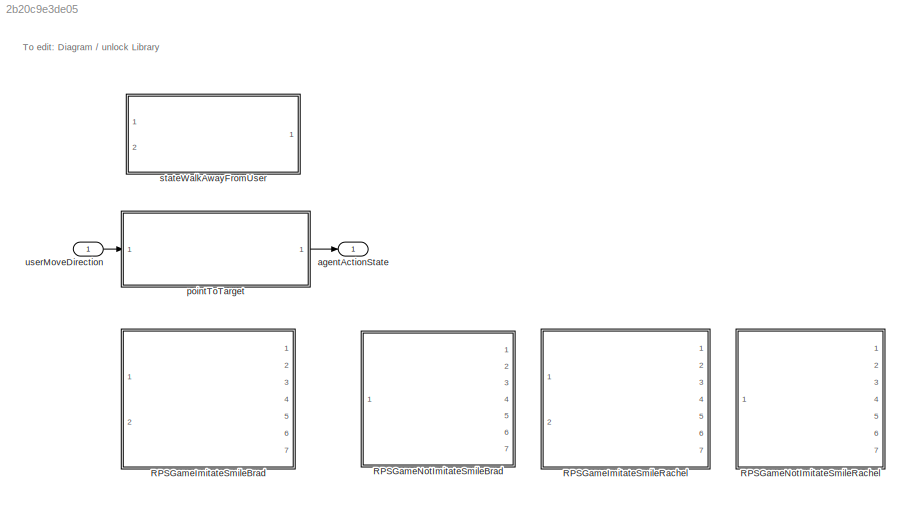
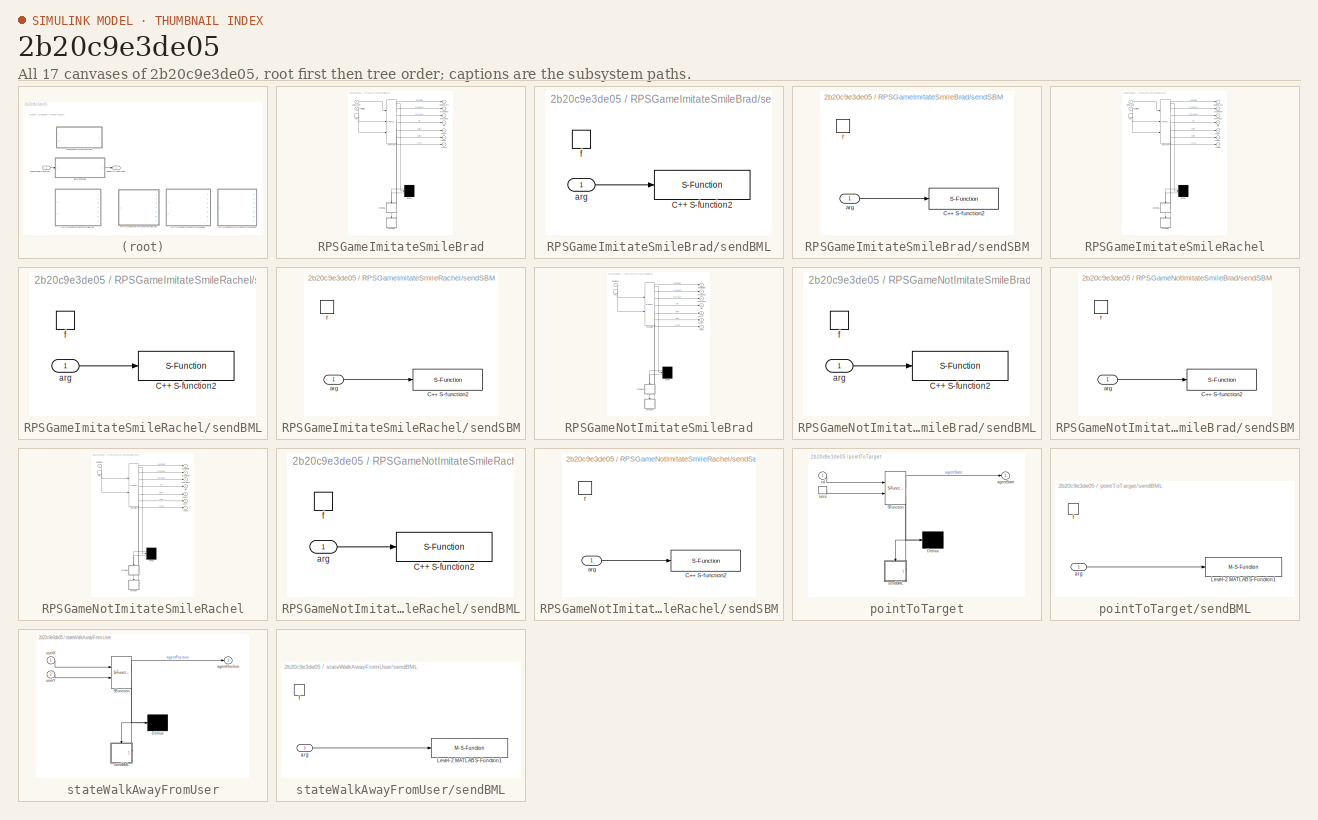
[diagram: thumbnail index - all 17 canvases of the model, root first then tree order]
MODEL slx_2b20c9e3de05
KIND library
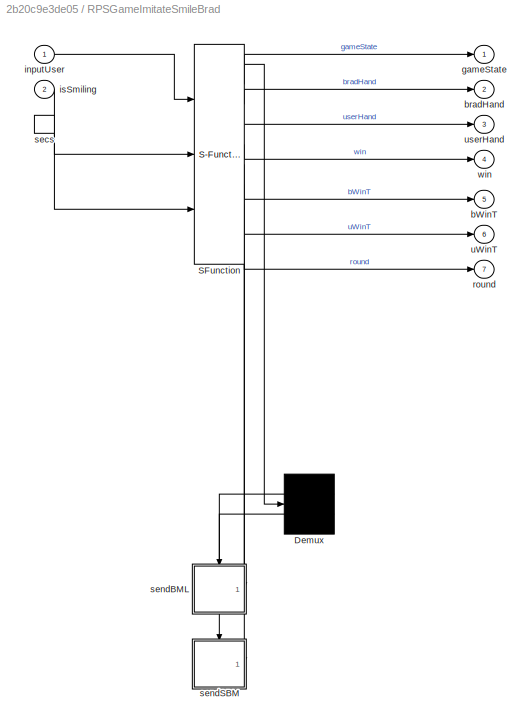
BLOCK [SubSystem] RPSGameImitateSmileBrad
  ErrorFcn = Stateflow.Translate.translate
  PermitHierarchicalResolution = ExplicitOnly
  Ports = [2, 7, 0, 1]
  RequestExecContextInheritance = off
  SFBlockType = Chart
  TreatAsAtomicUnit = on
BLOCK [Demux] RPSGameImitateSmileBrad/ Demux 
  Outputs = 2
  Ports = [1, 2]
BLOCK [S-Function] RPSGameImitateSmileBrad/ SFunction 
  EnableBusSupport = off
  FunctionName = sf_sfun
  PortCounts = [3 10]
  Ports = [3, 10]
  Tag = Stateflow S-Function lib_affectiveChar_scenario 2
BLOCK [Outport] RPSGameImitateSmileBrad/bWinT
  IconDisplay = Port number
  Port = 5
BLOCK [Outport] RPSGameImitateSmileBrad/bradHand
  IconDisplay = Port number
  Port = 2
BLOCK [Outport] RPSGameImitateSmileBrad/gameState
  IconDisplay = Port number
BLOCK [Inport] RPSGameImitateSmileBrad/inputUser
  IconDisplay = Port number
BLOCK [Inport] RPSGameImitateSmileBrad/isSmiling
  IconDisplay = Port number
  Port = 2
BLOCK [Outport] RPSGameImitateSmileBrad/round
  IconDisplay = Port number
  Port = 7
BLOCK [TriggerPort] RPSGameImitateSmileBrad/secs
  Ports = [0, 1]
  ShowOutputPort = on
  StatesWhenEnabling = held
BLOCK [SubSystem] RPSGameImitateSmileBrad/sendBML
  Ports = [1, 0, 0, 1]
  PreDeleteFcn = Stateflow.SLINSF.SimulinkMan.removePreDeleteFcn
  RequestExecContextInheritance = off
  UndoDeleteFcn = Stateflow.SLINSF.SimulinkMan.restorePreDeleteFcn
BLOCK [S-Function] RPSGameImitateSmileBrad/sendBML/C++ S-function2
  EnableBusSupport = off
  FunctionName = yarpSendText_sfun
  Parameters = '/sim/out/bml0', '/SB/in/bml'
  Ports = [1]
BLOCK [Inport] RPSGameImitateSmileBrad/sendBML/arg
  IconDisplay = Port number
  OutDataTypeStr = double
  PortDimensions = [256 1]
  SignalType = real
  VarSizeSig = No
BLOCK [TriggerPort] RPSGameImitateSmileBrad/sendBML/f
  CopyFcn = Stateflow.SLINSF.SimulinkMan.removeBlockPreDeleteFcn
  Ports = []
  PreDeleteFcn = Stateflow.SLINSF.SimulinkMan.unsafePredeleteFcn
  StatesWhenEnabling = held
  TriggerType = function-call
BLOCK [SubSystem] RPSGameImitateSmileBrad/sendSBM
  Ports = [1, 0, 0, 1]
  PreDeleteFcn = Stateflow.SLINSF.SimulinkMan.removePreDeleteFcn
  RequestExecContextInheritance = off
  UndoDeleteFcn = Stateflow.SLINSF.SimulinkMan.restorePreDeleteFcn
BLOCK [S-Function] RPSGameImitateSmileBrad/sendSBM/C++ S-function2
  EnableBusSupport = off
  FunctionName = yarpSendText_sfun
  Parameters = '/sim/out/smb0', '/SB/in/sbm'
  Ports = [1]
BLOCK [Inport] RPSGameImitateSmileBrad/sendSBM/arg
  IconDisplay = Port number
  OutDataTypeStr = double
  PortDimensions = [256 1]
  SignalType = real
  VarSizeSig = No
BLOCK [TriggerPort] RPSGameImitateSmileBrad/sendSBM/f
  CopyFcn = Stateflow.SLINSF.SimulinkMan.removeBlockPreDeleteFcn
  Ports = []
  PreDeleteFcn = Stateflow.SLINSF.SimulinkMan.unsafePredeleteFcn
  StatesWhenEnabling = held
  TriggerType = function-call
BLOCK [Outport] RPSGameImitateSmileBrad/uWinT
  IconDisplay = Port number
  Port = 6
BLOCK [Outport] RPSGameImitateSmileBrad/userHand
  IconDisplay = Port number
  Port = 3
BLOCK [Outport] RPSGameImitateSmileBrad/win
  IconDisplay = Port number
  Port = 4
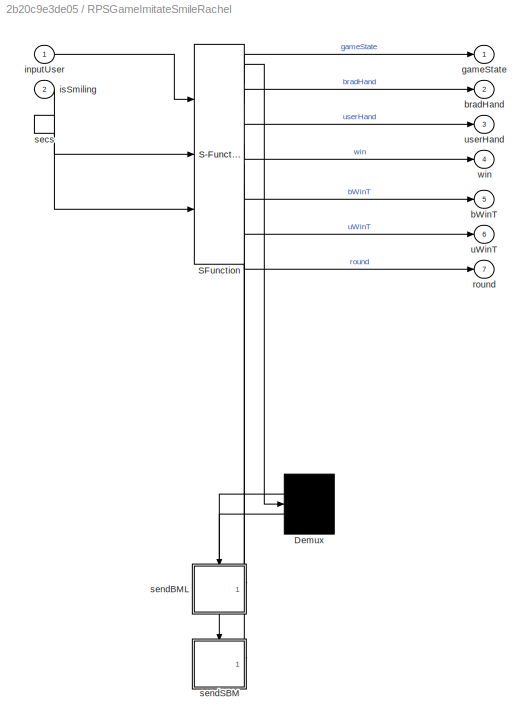
BLOCK [SubSystem] RPSGameImitateSmileRachel
  DSMNames = BOREDOM_THRESHOLD,GAZE_GUI,GAZE_SHOFTEYE,GAZE_USER_HAND,avert,bHand,boredom,diff,gazing,isPosing,p,r,randAvertGazeChance,randPoseChance,s,temp,uHand
  DSMValues = BOREDOM_THRESHOLD,GAZE_GUI,GAZE_SHOFTEYE,GAZE_USER_HAND,avert,bHand,boredom,diff,gazing,isPosing,p,r,randAvertGazeChance,randPoseChance,s,temp,uHand
  ErrorFcn = Stateflow.Translate.translate
  PermitHierarchicalResolution = ExplicitOnly
  Ports = [2, 7, 0, 1]
  RequestExecContextInheritance = off
  SFBlockType = Chart
  TreatAsAtomicUnit = on
BLOCK [Demux] RPSGameImitateSmileRachel/ Demux 
  Outputs = 2
  Ports = [1, 2]
BLOCK [S-Function] RPSGameImitateSmileRachel/ SFunction 
  EnableBusSupport = off
  FunctionName = sf_sfun
  PortCounts = [3 10]
  Ports = [3, 10]
  Tag = Stateflow S-Function lib_affectiveChar_scenario 5
BLOCK [Outport] RPSGameImitateSmileRachel/bWinT
  IconDisplay = Port number
  Port = 5
BLOCK [Outport] RPSGameImitateSmileRachel/bradHand
  IconDisplay = Port number
  Port = 2
BLOCK [Outport] RPSGameImitateSmileRachel/gameState
  IconDisplay = Port number
BLOCK [Inport] RPSGameImitateSmileRachel/inputUser
  IconDisplay = Port number
BLOCK [Inport] RPSGameImitateSmileRachel/isSmiling
  IconDisplay = Port number
  Port = 2
BLOCK [Outport] RPSGameImitateSmileRachel/round
  IconDisplay = Port number
  Port = 7
BLOCK [TriggerPort] RPSGameImitateSmileRachel/secs
  Ports = [0, 1]
  ShowOutputPort = on
  StatesWhenEnabling = held
BLOCK [SubSystem] RPSGameImitateSmileRachel/sendBML
  Ports = [1, 0, 0, 1]
  PreDeleteFcn = Stateflow.SLINSF.SimulinkMan.removePreDeleteFcn
  RequestExecContextInheritance = off
  UndoDeleteFcn = Stateflow.SLINSF.SimulinkMan.restorePreDeleteFcn
BLOCK [S-Function] RPSGameImitateSmileRachel/sendBML/C++ S-function2
  EnableBusSupport = off
  FunctionName = yarpSendText_sfun
  Parameters = '/sim/out/bml0', '/SB/in/bml'
  Ports = [1]
BLOCK [Inport] RPSGameImitateSmileRachel/sendBML/arg
  IconDisplay = Port number
  OutDataTypeStr = double
  PortDimensions = [256 1]
  SignalType = real
  VarSizeSig = No
BLOCK [TriggerPort] RPSGameImitateSmileRachel/sendBML/f
  CopyFcn = Stateflow.SLINSF.SimulinkMan.removeBlockPreDeleteFcn
  Ports = []
  PreDeleteFcn = Stateflow.SLINSF.SimulinkMan.unsafePredeleteFcn
  StatesWhenEnabling = held
  TriggerType = function-call
BLOCK [SubSystem] RPSGameImitateSmileRachel/sendSBM
  Ports = [1, 0, 0, 1]
  PreDeleteFcn = Stateflow.SLINSF.SimulinkMan.removePreDeleteFcn
  RequestExecContextInheritance = off
  UndoDeleteFcn = Stateflow.SLINSF.SimulinkMan.restorePreDeleteFcn
BLOCK [S-Function] RPSGameImitateSmileRachel/sendSBM/C++ S-function2
  EnableBusSupport = off
  FunctionName = yarpSendText_sfun
  Parameters = '/sim/out/smb0', '/SB/in/sbm'
  Ports = [1]
BLOCK [Inport] RPSGameImitateSmileRachel/sendSBM/arg
  IconDisplay = Port number
  OutDataTypeStr = double
  PortDimensions = [256 1]
  SignalType = real
  VarSizeSig = No
BLOCK [TriggerPort] RPSGameImitateSmileRachel/sendSBM/f
  CopyFcn = Stateflow.SLINSF.SimulinkMan.removeBlockPreDeleteFcn
  Ports = []
  PreDeleteFcn = Stateflow.SLINSF.SimulinkMan.unsafePredeleteFcn
  StatesWhenEnabling = held
  TriggerType = function-call
BLOCK [Outport] RPSGameImitateSmileRachel/uWinT
  IconDisplay = Port number
  Port = 6
BLOCK [Outport] RPSGameImitateSmileRachel/userHand
  IconDisplay = Port number
  Port = 3
BLOCK [Outport] RPSGameImitateSmileRachel/win
  IconDisplay = Port number
  Port = 4
BLOCK [SubSystem] RPSGameNotImitateSmileBrad
  ErrorFcn = Stateflow.Translate.translate
  PermitHierarchicalResolution = ExplicitOnly
  Ports = [1, 7, 0, 1]
  RequestExecContextInheritance = off
  SFBlockType = Chart
  TreatAsAtomicUnit = on
BLOCK [Demux] RPSGameNotImitateSmileBrad/ Demux 
  Outputs = 2
  Ports = [1, 2]
BLOCK [S-Function] RPSGameNotImitateSmileBrad/ SFunction 
  EnableBusSupport = off
  FunctionName = sf_sfun
  PortCounts = [2 10]
  Ports = [2, 10]
  Tag = Stateflow S-Function lib_affectiveChar_scenario 8
BLOCK [Outport] RPSGameNotImitateSmileBrad/bWinT
  IconDisplay = Port number
  Port = 5
BLOCK [Outport] RPSGameNotImitateSmileBrad/bradHand
  IconDisplay = Port number
  Port = 2
BLOCK [Outport] RPSGameNotImitateSmileBrad/gameState
  IconDisplay = Port number
BLOCK [Inport] RPSGameNotImitateSmileBrad/inputUser
  IconDisplay = Port number
BLOCK [Outport] RPSGameNotImitateSmileBrad/round
  IconDisplay = Port number
  Port = 7
BLOCK [TriggerPort] RPSGameNotImitateSmileBrad/secs
  Ports = [0, 1]
  ShowOutputPort = on
  StatesWhenEnabling = held
BLOCK [SubSystem] RPSGameNotImitateSmileBrad/sendBML
  Ports = [1, 0, 0, 1]
  PreDeleteFcn = Stateflow.SLINSF.SimulinkMan.removePreDeleteFcn
  RequestExecContextInheritance = off
  UndoDeleteFcn = Stateflow.SLINSF.SimulinkMan.restorePreDeleteFcn
BLOCK [S-Function] RPSGameNotImitateSmileBrad/sendBML/C++ S-function2
  EnableBusSupport = off
  FunctionName = yarpSendText_sfun
  Parameters = '/sim/out/bml0', '/SB/in/bml'
  Ports = [1]
BLOCK [Inport] RPSGameNotImitateSmileBrad/sendBML/arg
  IconDisplay = Port number
  OutDataTypeStr = double
  PortDimensions = [256 1]
  SignalType = real
  VarSizeSig = No
BLOCK [TriggerPort] RPSGameNotImitateSmileBrad/sendBML/f
  CopyFcn = Stateflow.SLINSF.SimulinkMan.removeBlockPreDeleteFcn
  Ports = []
  PreDeleteFcn = Stateflow.SLINSF.SimulinkMan.unsafePredeleteFcn
  StatesWhenEnabling = held
  TriggerType = function-call
BLOCK [SubSystem] RPSGameNotImitateSmileBrad/sendSBM
  Ports = [1, 0, 0, 1]
  PreDeleteFcn = Stateflow.SLINSF.SimulinkMan.removePreDeleteFcn
  RequestExecContextInheritance = off
  UndoDeleteFcn = Stateflow.SLINSF.SimulinkMan.restorePreDeleteFcn
BLOCK [S-Function] RPSGameNotImitateSmileBrad/sendSBM/C++ S-function2
  EnableBusSupport = off
  FunctionName = yarpSendText_sfun
  Parameters = '/sim/out/smb0', '/SB/in/sbm'
  Ports = [1]
BLOCK [Inport] RPSGameNotImitateSmileBrad/sendSBM/arg
  IconDisplay = Port number
  OutDataTypeStr = double
  PortDimensions = [256 1]
  SignalType = real
  VarSizeSig = No
BLOCK [TriggerPort] RPSGameNotImitateSmileBrad/sendSBM/f
  CopyFcn = Stateflow.SLINSF.SimulinkMan.removeBlockPreDeleteFcn
  Ports = []
  PreDeleteFcn = Stateflow.SLINSF.SimulinkMan.unsafePredeleteFcn
  StatesWhenEnabling = held
  TriggerType = function-call
BLOCK [Outport] RPSGameNotImitateSmileBrad/uWinT
  IconDisplay = Port number
  Port = 6
BLOCK [Outport] RPSGameNotImitateSmileBrad/userHand
  IconDisplay = Port number
  Port = 3
BLOCK [Outport] RPSGameNotImitateSmileBrad/win
  IconDisplay = Port number
  Port = 4
BLOCK [SubSystem] RPSGameNotImitateSmileRachel
  ErrorFcn = Stateflow.Translate.translate
  PermitHierarchicalResolution = ExplicitOnly
  Ports = [1, 7, 0, 1]
  RequestExecContextInheritance = off
  SFBlockType = Chart
  TreatAsAtomicUnit = on
BLOCK [Demux] RPSGameNotImitateSmileRachel/ Demux 
  Outputs = 2
  Ports = [1, 2]
BLOCK [S-Function] RPSGameNotImitateSmileRachel/ SFunction 
  EnableBusSupport = off
  FunctionName = sf_sfun
  PortCounts = [2 10]
  Ports = [2, 10]
  Tag = Stateflow S-Function lib_affectiveChar_scenario 3
BLOCK [Outport] RPSGameNotImitateSmileRachel/bWinT
  IconDisplay = Port number
  Port = 5
BLOCK [Outport] RPSGameNotImitateSmileRachel/bradHand
  IconDisplay = Port number
  Port = 2
BLOCK [Outport] RPSGameNotImitateSmileRachel/gameState
  IconDisplay = Port number
BLOCK [Inport] RPSGameNotImitateSmileRachel/inputUser
  IconDisplay = Port number
BLOCK [Outport] RPSGameNotImitateSmileRachel/round
  IconDisplay = Port number
  Port = 7
BLOCK [TriggerPort] RPSGameNotImitateSmileRachel/secs
  Ports = [0, 1]
  ShowOutputPort = on
  StatesWhenEnabling = held
BLOCK [SubSystem] RPSGameNotImitateSmileRachel/sendBML
  Ports = [1, 0, 0, 1]
  PreDeleteFcn = Stateflow.SLINSF.SimulinkMan.removePreDeleteFcn
  RequestExecContextInheritance = off
  UndoDeleteFcn = Stateflow.SLINSF.SimulinkMan.restorePreDeleteFcn
BLOCK [S-Function] RPSGameNotImitateSmileRachel/sendBML/C++ S-function2
  EnableBusSupport = off
  FunctionName = yarpSendText_sfun
  Parameters = '/sim/out/bml0', '/SB/in/bml'
  Ports = [1]
BLOCK [Inport] RPSGameNotImitateSmileRachel/sendBML/arg
  IconDisplay = Port number
  OutDataTypeStr = double
  PortDimensions = [256 1]
  SignalType = real
  VarSizeSig = No
BLOCK [TriggerPort] RPSGameNotImitateSmileRachel/sendBML/f
  CopyFcn = Stateflow.SLINSF.SimulinkMan.removeBlockPreDeleteFcn
  Ports = []
  PreDeleteFcn = Stateflow.SLINSF.SimulinkMan.unsafePredeleteFcn
  StatesWhenEnabling = held
  TriggerType = function-call
BLOCK [SubSystem] RPSGameNotImitateSmileRachel/sendSBM
  Ports = [1, 0, 0, 1]
  PreDeleteFcn = Stateflow.SLINSF.SimulinkMan.removePreDeleteFcn
  RequestExecContextInheritance = off
  UndoDeleteFcn = Stateflow.SLINSF.SimulinkMan.restorePreDeleteFcn
BLOCK [S-Function] RPSGameNotImitateSmileRachel/sendSBM/C++ S-function2
  EnableBusSupport = off
  FunctionName = yarpSendText_sfun
  Parameters = '/sim/out/smb0', '/SB/in/sbm'
  Ports = [1]
BLOCK [Inport] RPSGameNotImitateSmileRachel/sendSBM/arg
  IconDisplay = Port number
  OutDataTypeStr = double
  PortDimensions = [256 1]
  SignalType = real
  VarSizeSig = No
BLOCK [TriggerPort] RPSGameNotImitateSmileRachel/sendSBM/f
  CopyFcn = Stateflow.SLINSF.SimulinkMan.removeBlockPreDeleteFcn
  Ports = []
  PreDeleteFcn = Stateflow.SLINSF.SimulinkMan.unsafePredeleteFcn
  StatesWhenEnabling = held
  TriggerType = function-call
BLOCK [Outport] RPSGameNotImitateSmileRachel/uWinT
  IconDisplay = Port number
  Port = 6
BLOCK [Outport] RPSGameNotImitateSmileRachel/userHand
  IconDisplay = Port number
  Port = 3
BLOCK [Outport] RPSGameNotImitateSmileRachel/win
  IconDisplay = Port number
  Port = 4
BLOCK [Outport] agentActionState
  IconDisplay = Port number
BLOCK [SubSystem] pointToTarget
  ErrorFcn = Stateflow.Translate.translate
  PermitHierarchicalResolution = ExplicitOnly
  Ports = [1, 1, 0, 1]
  RequestExecContextInheritance = off
  SFBlockType = Chart
  TreatAsAtomicUnit = on
BLOCK [Demux] pointToTarget/ Demux 
  Outputs = 1
  Ports = [1, 1]
BLOCK [S-Function] pointToTarget/ SFunction 
  EnableBusSupport = off
  FunctionName = sf_sfun
  PortCounts = [2 3]
  Ports = [2, 3]
  Tag = Stateflow S-Function lib_affectiveChar_scenario 4
BLOCK [Outport] pointToTarget/agentState
  IconDisplay = Port number
BLOCK [TriggerPort] pointToTarget/secs
  Ports = [0, 1]
  ShowOutputPort = on
  StatesWhenEnabling = held
BLOCK [SubSystem] pointToTarget/sendBML
  Ports = [1, 0, 0, 1]
  PreDeleteFcn = Stateflow.SLINSF.SimulinkMan.removePreDeleteFcn
  RequestExecContextInheritance = off
  UndoDeleteFcn = Stateflow.SLINSF.SimulinkMan.restorePreDeleteFcn
BLOCK [M-S-Function] pointToTarget/sendBML/Level-2 MATLAB S-Function1
  FunctionName = yarpSendText_sfun
  Parameters = '/sim/out/bml', '/SB/in/bml'
  Ports = [1]
BLOCK [Inport] pointToTarget/sendBML/arg
  IconDisplay = Port number
  OutDataTypeStr = double
  PortDimensions = [256 1]
  SignalType = real
  VarSizeSig = No
BLOCK [TriggerPort] pointToTarget/sendBML/f
  CopyFcn = Stateflow.SLINSF.SimulinkMan.removeBlockPreDeleteFcn
  Ports = []
  PreDeleteFcn = Stateflow.SLINSF.SimulinkMan.unsafePredeleteFcn
  StatesWhenEnabling = held
  TriggerType = function-call
BLOCK [Inport] pointToTarget/xd
  IconDisplay = Port number
BLOCK [SubSystem] stateWalkAwayFromUser
  ErrorFcn = Stateflow.Translate.translate
  PermitHierarchicalResolution = ExplicitOnly
  Ports = [2, 1]
  RequestExecContextInheritance = off
  SFBlockType = Chart
  TreatAsAtomicUnit = on
BLOCK [Demux] stateWalkAwayFromUser/ Demux 
  Outputs = 1
  Ports = [1, 1]
BLOCK [S-Function] stateWalkAwayFromUser/ SFunction 
  EnableBusSupport = off
  FunctionName = sf_sfun
  PortCounts = [2 3]
  Ports = [2, 3]
  Tag = Stateflow S-Function lib_affectiveChar_scenario 1
BLOCK [Outport] stateWalkAwayFromUser/agentPosition
  IconDisplay = Port number
BLOCK [SubSystem] stateWalkAwayFromUser/sendBML
  Ports = [1, 0, 0, 1]
  PreDeleteFcn = Stateflow.SLINSF.SimulinkMan.removePreDeleteFcn
  RequestExecContextInheritance = off
  UndoDeleteFcn = Stateflow.SLINSF.SimulinkMan.restorePreDeleteFcn
BLOCK [M-S-Function] stateWalkAwayFromUser/sendBML/Level-2 MATLAB S-Function1
  FunctionName = yarpSendText_sfun
  Parameters = '/sim/out/bml4', '/SB/in/bml'
  Ports = [1]
BLOCK [Inport] stateWalkAwayFromUser/sendBML/arg
  IconDisplay = Port number
  OutDataTypeStr = double
  PortDimensions = [256 1]
  SignalType = real
  VarSizeSig = No
BLOCK [TriggerPort] stateWalkAwayFromUser/sendBML/f
  CopyFcn = Stateflow.SLINSF.SimulinkMan.removeBlockPreDeleteFcn
  Ports = []
  PreDeleteFcn = Stateflow.SLINSF.SimulinkMan.unsafePredeleteFcn
  StatesWhenEnabling = held
  TriggerType = function-call
BLOCK [Inport] stateWalkAwayFromUser/userX
  IconDisplay = Port number
BLOCK [Inport] stateWalkAwayFromUser/userY
  IconDisplay = Port number
  Port = 2
BLOCK [Inport] userMoveDirection
  IconDisplay = Port number
ANNOTATION (root): To edit: Diagram / unlock Library
LINE pointToTarget:1 -> agentActionState:1
LINE userMoveDirection:1 -> pointToTarget:1
